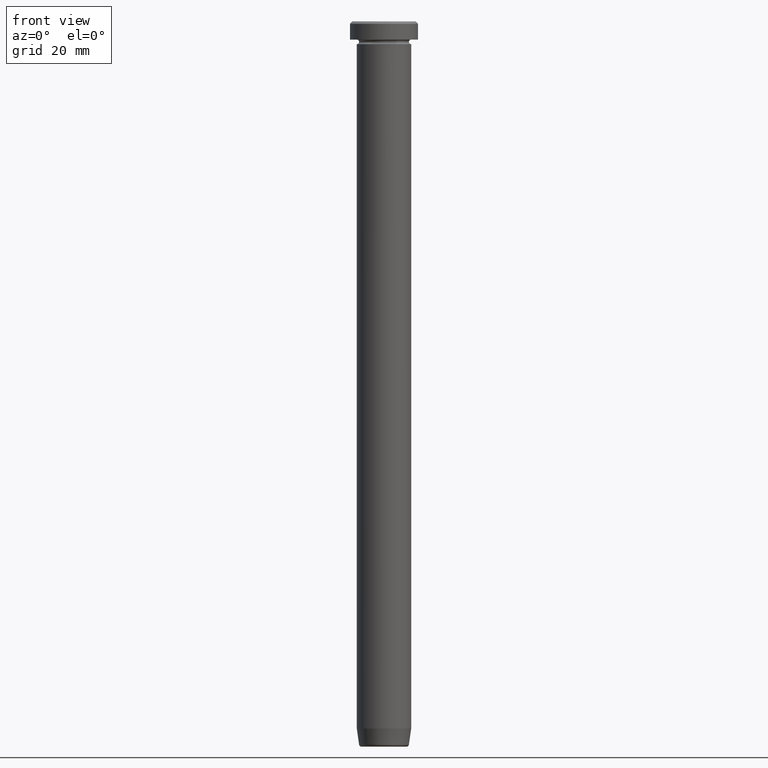
[diagram: clean part render]
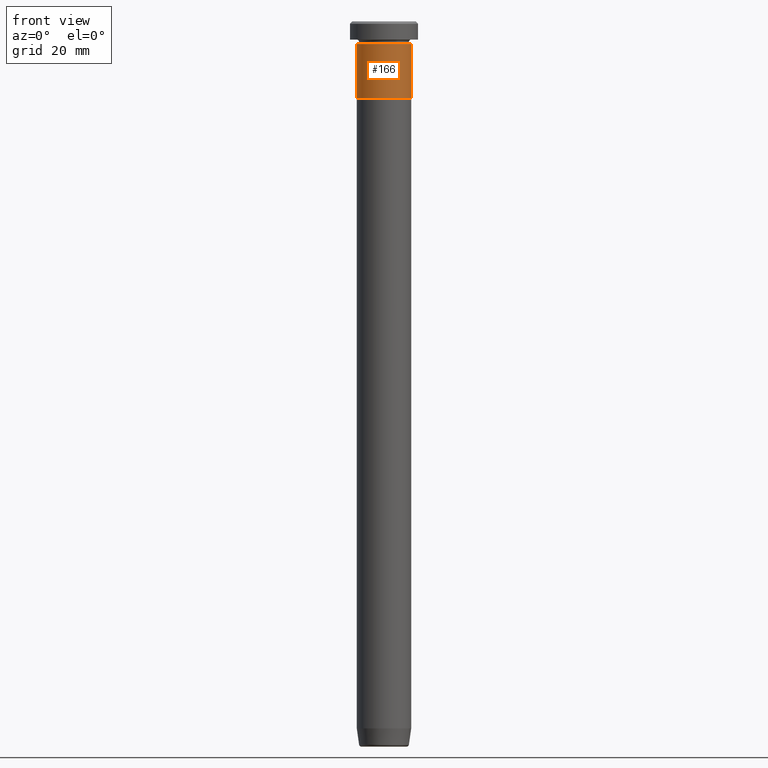
[diagram: same view with one face highlighted and labeled with its STEP entity id]
A machine part, front view. The second image highlights one B-rep face of the part: STEP entity #166.
In plain terms, the highlighted cylindrical surface (edge-blend (fillet) strip) has radius 6 mm, axis along (-0, -0, 1).
Its self-contained STEP definition (entity closure, byte-faithful):
#14 = EDGE_CURVE ( 'NONE', #211, #163, #475, .T. ) ;
#18 = AXIS2_PLACEMENT_3D ( 'NONE', #283, #270, #356 ) ;
#22 = DIRECTION ( 'NONE',  ( 1.000000000000000000, 0.000000000000000000, 0.000000000000000000 ) ) ;
#30 = CARTESIAN_POINT ( 'NONE',  ( -6.000000000000000000, 7.347880794884119736E-16, -5.000000000000000000 ) ) ;
#39 = CARTESIAN_POINT ( 'NONE',  ( 6.000000000000000000, 0.000000000000000000, 0.000000000000000000 ) ) ;
#58 = EDGE_CURVE ( 'NONE', #211, #576, #364, .T. ) ;
#120 = CARTESIAN_POINT ( 'NONE',  ( 6.000000000000000000, 0.000000000000000000, -5.000000000000000000 ) ) ;
#124 = CARTESIAN_POINT ( 'NONE',  ( -6.000000000000000000, 7.347880794884119736E-16, -17.00000000000000000 ) ) ;
#129 = EDGE_CURVE ( 'NONE', #163, #276, #133, .T. ) ;
#133 = CIRCLE ( 'NONE', #155, 6.000000000000000000 ) ;
#155 = AXIS2_PLACEMENT_3D ( 'NONE', #403, #550, #312 ) ;
#163 = VERTEX_POINT ( 'NONE', #30 ) ;
#166 = ADVANCED_FACE ( 'NONE', ( #491 ), #169, .T. ) ;
#167 = DIRECTION ( 'NONE',  ( -0.000000000000000000, -0.000000000000000000, 1.000000000000000000 ) ) ;
#169 = CYLINDRICAL_SURFACE ( 'NONE', #18, 6.000000000000000000 ) ;
#177 = LINE ( 'NONE', #39, #345 ) ;
#178 = CARTESIAN_POINT ( 'NONE',  ( 6.000000000000000000, 0.000000000000000000, -17.00000000000000000 ) ) ;
#211 = VERTEX_POINT ( 'NONE', #124 ) ;
#253 = EDGE_CURVE ( 'NONE', #576, #276, #177, .T. ) ;
#258 = DIRECTION ( 'NONE',  ( -0.000000000000000000, -0.000000000000000000, 1.000000000000000000 ) ) ;
#270 = DIRECTION ( 'NONE',  ( -0.000000000000000000, -0.000000000000000000, 1.000000000000000000 ) ) ;
#271 = ORIENTED_EDGE ( 'NONE', *, *, #129, .F. ) ;
#276 = VERTEX_POINT ( 'NONE', #120 ) ;
#283 = CARTESIAN_POINT ( 'NONE',  ( 0.000000000000000000, 0.000000000000000000, 0.000000000000000000 ) ) ;
#300 = DIRECTION ( 'NONE',  ( -0.000000000000000000, -0.000000000000000000, 1.000000000000000000 ) ) ;
#312 = DIRECTION ( 'NONE',  ( 1.000000000000000000, 0.000000000000000000, 0.000000000000000000 ) ) ;
#319 = EDGE_LOOP ( 'NONE', ( #363, #400, #433, #271 ) ) ;
#345 = VECTOR ( 'NONE', #167, 1000.000000000000000 ) ;
#356 = DIRECTION ( 'NONE',  ( 1.000000000000000000, 0.000000000000000000, 0.000000000000000000 ) ) ;
#363 = ORIENTED_EDGE ( 'NONE', *, *, #14, .F. ) ;
#364 = CIRCLE ( 'NONE', #515, 6.000000000000000000 ) ;
#400 = ORIENTED_EDGE ( 'NONE', *, *, #58, .T. ) ;
#403 = CARTESIAN_POINT ( 'NONE',  ( 0.000000000000000000, 0.000000000000000000, -5.000000000000000000 ) ) ;
#426 = CARTESIAN_POINT ( 'NONE',  ( 0.000000000000000000, 0.000000000000000000, -17.00000000000000000 ) ) ;
#433 = ORIENTED_EDGE ( 'NONE', *, *, #253, .T. ) ;
#475 = LINE ( 'NONE', #571, #527 ) ;
#491 = FACE_OUTER_BOUND ( 'NONE', #319, .T. ) ;
#515 = AXIS2_PLACEMENT_3D ( 'NONE', #426, #258, #22 ) ;
#527 = VECTOR ( 'NONE', #300, 1000.000000000000000 ) ;
#550 = DIRECTION ( 'NONE',  ( -0.000000000000000000, -0.000000000000000000, 1.000000000000000000 ) ) ;
#571 = CARTESIAN_POINT ( 'NONE',  ( -6.000000000000000000, 7.347880794884119736E-16, 0.000000000000000000 ) ) ;
#576 = VERTEX_POINT ( 'NONE', #178 ) ;